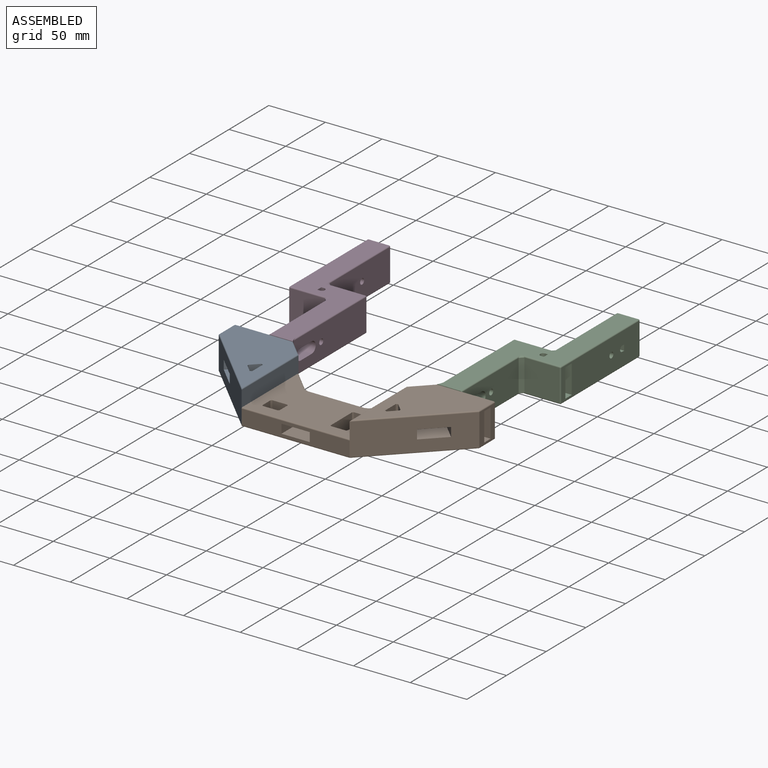
[diagram: assembled view]
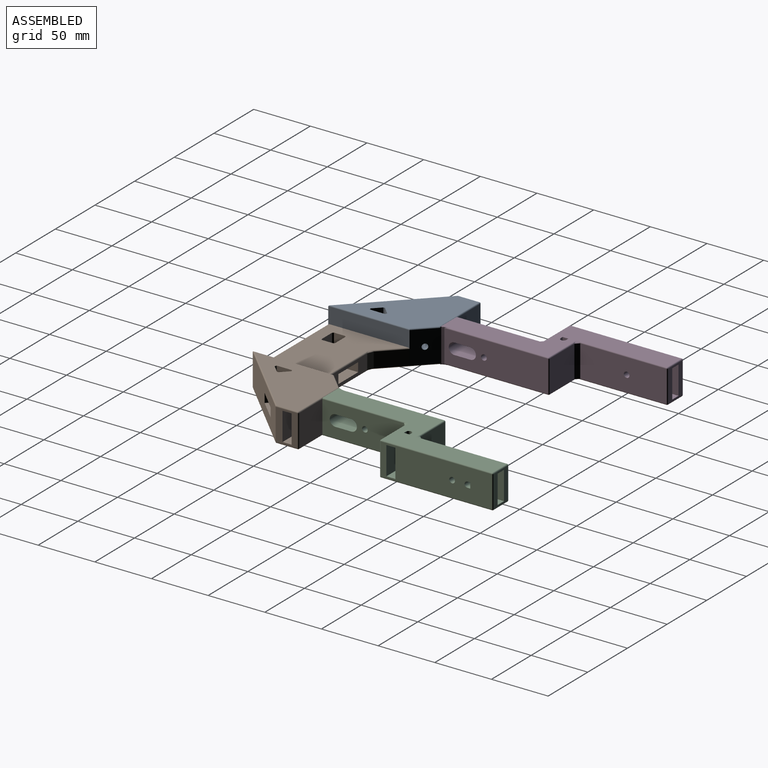
[diagram: assembled view, second angle]
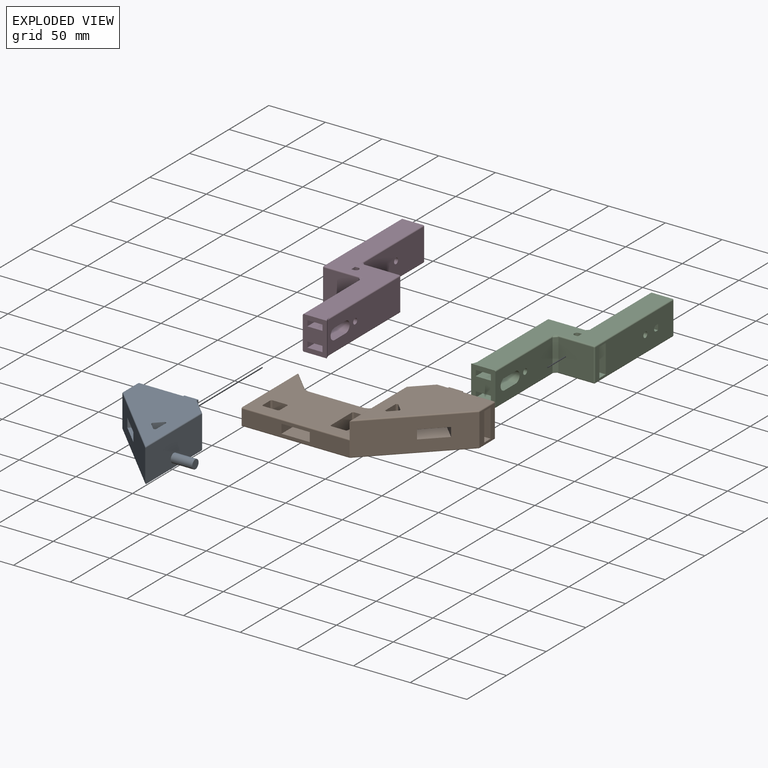
[diagram: exploded view]
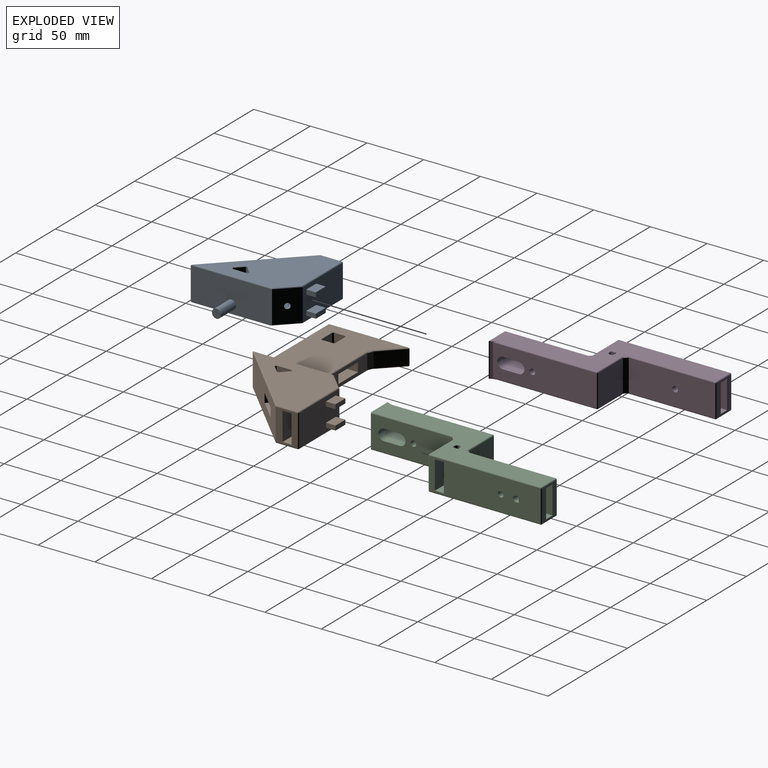
[diagram: exploded view, second angle]
ASSEMBLY  parts=4 mates=3
PART A: 49 faces, bbox 86.4x96.1x30 mm
  f0: plane 84.22x65.37mm, normal (0,0,1), area 3171.5mm2, adj f32,f33,f34,f36,f37,f43,f44,f45
  f1: plane 85.22x66.37mm, normal (0,0,-1), area 3240.3mm2, adj f3,f38,f39,f40,f42,f43,f44,f45
  f2: plane 50.41x28mm, normal (0,1,0), area 1312.1mm2, adj f18,f21,f22,f23,f24,f26,f27,f28
  f3: plane 71.68x29mm, normal (1,0,0), area 2027.7mm2, adj f1,f17,f18,f19,f34,f38,f40
  f4: plane 25x8mm, normal (-1,0,0), area 180.4mm2, adj f5,f7,f8,f9,f10
  f5: cylinder r=2.5mm len=37.18mm, axis (-1,0,0), area 548.7mm2, adj f4,f11
  f6: plane 17.68x17.68mm, normal (-0.71,-0.71,0), area 180.4mm2, adj f11,f12,f13,f14,f15
  f7: plane 20x8mm, normal (0,0,1), area 160mm2, adj f4,f8,f10,f16
  f8: plane 25x20mm, normal (0,1,0), area 500mm2, adj f4,f7,f9,f16
  f9: plane 20x8mm, normal (0,0,-1), area 160mm2, adj f4,f8,f10,f16
  f10: plane 25x20mm, normal (0,-1,0), area 500mm2, adj f4,f7,f9,f16
  f11: cylinder r=2.5mm len=25.23mm, axis (-0.71,-0.71,0), area 446.6mm2, adj f5,f6,f18
  f12: plane 14.14x14.14mm, normal (0.71,-0.71,0), area 160mm2, adj f6,f13,f15,f17
  f13: plane 31.82x31.82mm, normal (0,0,1), area 500mm2, adj f6,f12,f14,f17
  f14: plane 14.14x14.14mm, normal (-0.71,0.71,0), area 160mm2, adj f6,f13,f15,f17
  f15: plane 31.82x31.82mm, normal (0,0,-1), area 500mm2, adj f6,f12,f14,f17
  f16: plane 28x19.27mm, normal (-1,0,0), area 339.5mm2, adj f7,f8,f9,f10,f17,f31,f33,f39
  f17: plane 67.37x67.37mm, normal (-0.71,-0.71,0), area 2467.5mm2, adj f3,f12,f13,f14,f15,f16,f32,f38
  f18: plane 28x15.96mm, normal (0.71,0.71,0), area 612.3mm2, adj f2,f3,f11,f36,f40
  f19: cylinder r=4mm len=19mm, axis (-1,0,0), area 477.5mm2, adj f3,f20
  f20: plane 8x8mm, normal (1,0,0), area 50.3mm2, adj f19
  f21: plane 12.41x8.5mm, normal (0,0,1), area 105.5mm2, adj f2,f22,f24,f25
  f22: plane 8.5x4mm, normal (1,0,0), area 34mm2, adj f2,f21,f23,f25
  f23: plane 12.41x8.5mm, normal (0,0,-1), area 105.5mm2, adj f2,f22,f24,f25
  f24: plane 8.5x4mm, normal (-1,0,0), area 34mm2, adj f2,f21,f23,f25
  f25: plane 12.41x4mm, normal (0,1,0), area 49.6mm2, adj f21,f22,f23,f24
  f26: plane 12.41x8.5mm, normal (0,0,1), area 105.5mm2, adj f2,f27,f29,f30
  f27: plane 8.5x4mm, normal (1,0,0), area 34mm2, adj f2,f26,f28,f30
  f28: plane 12.41x8.5mm, normal (0,0,-1), area 105.5mm2, adj f2,f27,f29,f30
  f29: plane 8.5x4mm, normal (-1,0,0), area 34mm2, adj f2,f26,f28,f30
  f30: plane 12.41x4mm, normal (0,1,0), area 49.6mm2, adj f26,f27,f28,f29
  f31: cylinder r=1mm len=28mm, axis (0,0,-1), area 44mm2, adj f2,f16,f35,f41
  f32: cylinder r=1mm len=68.07mm, axis (0.71,-0.71,0), area 148mm2, adj f0,f17,f33,f34
  f33: cylinder r=1mm len=19.27mm, axis (0,-1,0), area 30mm2, adj f0,f16,f32,f35
  f34: cylinder r=1mm len=71.68mm, axis (0,-1,0), area 111mm2, adj f0,f3,f32,f36
  f35: sphere r=1mm, area 1.6mm2, adj f31,f33,f37
  f36: cylinder r=1mm len=16.67mm, axis (-0.71,0.71,0), area 35mm2, adj f0,f18,f34,f37
  f37: cylinder r=1mm len=50.41mm, axis (1,0,0), area 78.9mm2, adj f0,f2,f35,f36
  f38: cylinder r=1mm len=68.07mm, axis (-0.71,0.71,0), area 148.8mm2, adj f1,f3,f17,f39
  f39: cylinder r=1mm len=19.27mm, axis (0,1,0), area 30mm2, adj f1,f16,f38,f41
  f40: cylinder r=1mm len=17.37mm, axis (0.71,-0.71,0), area 35.8mm2, adj f1,f3,f18,f42
  f41: sphere r=1mm, area 1.6mm2, adj f31,f39,f42
  f42: cylinder r=1mm len=50.41mm, axis (1,0,0), area 78.9mm2, adj f1,f2,f40,f41
  f43: plane 30x13.48mm, normal (-1,0,0), area 404.3mm2, adj f0,f1,f46,f47
  f44: plane 30x6.74mm, normal (0.71,-0.71,0), area 285.9mm2, adj f0,f1,f47,f48
  f45: plane 30x6.74mm, normal (0.71,0.71,0), area 285.9mm2, adj f0,f1,f46,f48
  f46: plane 30x1.71mm, normal (-0.38,0.92,0), area 55.4mm2, adj f0,f1,f43,f45
  f47: plane 30x1.71mm, normal (-0.38,-0.92,0), area 55.4mm2, adj f0,f1,f43,f44
  f48: plane 30x1.41mm, normal (1,0,0), area 42.4mm2, adj f0,f1,f44,f45
PART B: 92 faces, bbox 163.8x96.6x30.4 mm
  f0: plane 161.63x85.63mm, normal (0,0,-1), area 7701mm2, adj f28,f42,f43,f44,f45,f46,f47,f48
  f1: plane 84.22x65.37mm, normal (0,0,1), area 3171.5mm2, adj f55,f56,f58,f61,f62,f78,f79,f80
  f2: plane 95.27x69.26mm, normal (0,0,1), area 4460.8mm2, adj f19,f28,f51,f52,f53,f54,f63,f70
  f3: plane 50.41x28mm, normal (0,1,0), area 1312.1mm2, adj f4,f31,f32,f33,f34,f36,f37,f38
  f4: plane 34.55x34.55mm, normal (-0.71,0.71,0), area 947.9mm2, adj f3,f16,f48,f54,f57,f61,f65
  f5: plane 25x8mm, normal (1,0,0), area 180.4mm2, adj f6,f8,f9,f10,f11
  f6: cylinder r=2.5mm len=37.18mm, axis (1,0,0), area 556.2mm2, adj f5,f16
  f7: plane 17.68x17.68mm, normal (0.71,-0.71,0), area 180.4mm2, adj f12,f13,f14,f15,f16
  f8: plane 20x8mm, normal (0,0,-1), area 160mm2, adj f5,f9,f11,f17
  f9: plane 25x20mm, normal (0,1,0), area 500mm2, adj f5,f8,f10,f17
  f10: plane 20x8mm, normal (0,0,1), area 160mm2, adj f5,f9,f11,f17
  f11: plane 25x20mm, normal (0,-1,0), area 500mm2, adj f5,f8,f10,f17
  f12: plane 14.14x14.14mm, normal (0.71,0.71,0), area 160mm2, adj f7,f13,f15,f18
  f13: plane 31.82x31.82mm, normal (0,0,1), area 500mm2, adj f7,f12,f14,f18
  f14: plane 14.14x14.14mm, normal (-0.71,-0.71,0), area 160mm2, adj f7,f13,f15,f18
  f15: plane 31.82x31.82mm, normal (0,0,-1), area 500mm2, adj f7,f12,f14,f18
  f16: cylinder r=2.5mm len=25.23mm, axis (0.71,-0.71,0), area 447.7mm2, adj f4,f6,f7
  f17: plane 28x19.27mm, normal (1,0,0), area 339.5mm2, adj f8,f9,f10,f11,f18,f41,f47,f58
  f18: plane 67.37x67.37mm, normal (0.71,-0.71,0), area 2467.5mm2, adj f12,f13,f14,f15,f17,f19,f24,f45
  f19: plane 71.32x15.06mm, normal (-1,0,0), area 998mm2, adj f2,f18,f54,f56,f57,f63
  f20: plane 50.96x8mm, normal (-1,0,0), area 407.7mm2, adj f21,f22,f23,f24
  f21: plane 50.96x25mm, normal (0,0,-1), area 1274.1mm2, adj f20,f23,f24,f26,f27
  f22: plane 50.96x25mm, normal (0,0,1), area 1274.1mm2, adj f20,f23,f24,f26,f27
  f23: plane 23.92x13mm, normal (0,1,0), area 211mm2, adj f20,f21,f22,f27,f46,f53,f65
  f24: plane 95.27x13mm, normal (0,-1,0), area 1038.5mm2, adj f18,f20,f21,f22,f26,f28,f43,f63
  f25: plane 18.59x18.59mm, normal (0.71,0.71,0), area 341.8mm2, adj f28,f42,f51,f68
  f26: plane 50.96x8mm, normal (1,0,0), area 407.7mm2, adj f21,f22,f24,f27
  f27: plane 23.92x13mm, normal (0,1,0), area 211mm2, adj f21,f22,f23,f26,f44,f52,f68
  f28: plane 72.1x15.42mm, normal (-1,0,0), area 1010.5mm2, adj f0,f2,f24,f25,f29,f42,f43,f51
  f29: cylinder r=4.5mm len=20mm, axis (-1,0,0), area 565.5mm2, adj f28,f30
  f30: plane 9x9mm, normal (-1,0,0), area 63.6mm2, adj f29
  f31: plane 12.41x8.5mm, normal (0,0,1), area 105.5mm2, adj f3,f32,f34,f35
  f32: plane 8.5x4mm, normal (1,0,0), area 34mm2, adj f3,f31,f33,f35
  f33: plane 12.41x8.5mm, normal (0,0,-1), area 105.5mm2, adj f3,f32,f34,f35
  f34: plane 8.5x4mm, normal (-1,0,0), area 34mm2, adj f3,f31,f33,f35
  f35: plane 12.41x4mm, normal (0,1,0), area 49.6mm2, adj f31,f32,f33,f34
  f36: plane 12.41x8.5mm, normal (0,0,1), area 105.5mm2, adj f3,f37,f39,f40
  f37: plane 8.5x4mm, normal (1,0,0), area 34mm2, adj f3,f36,f38,f40
  f38: plane 12.41x8.5mm, normal (0,0,-1), area 105.5mm2, adj f3,f37,f39,f40
  f39: plane 8.5x4mm, normal (-1,0,0), area 34mm2, adj f3,f36,f38,f40
  f40: plane 12.41x4mm, normal (0,1,0), area 49.6mm2, adj f36,f37,f38,f39
  f41: cylinder r=1mm len=28mm, axis (0,0,-1), area 44mm2, adj f3,f17,f49,f60
  f42: cylinder r=1mm len=21.71mm, axis (0.71,-0.71,0), area 43.2mm2, adj f0,f25,f28,f67
  f43: cylinder r=1mm len=95.27mm, axis (1,0,0), area 149.3mm2, adj f0,f24,f28,f45
  f44: cylinder r=1mm len=27.34mm, axis (1,0,0), area 39.5mm2, adj f0,f27,f46,f67
  f45: cylinder r=1mm len=68.07mm, axis (0.71,0.71,0), area 149mm2, adj f0,f18,f43,f47
  f46: cylinder r=1mm len=27.34mm, axis (-1,0,0), area 39.5mm2, adj f0,f23,f44,f64
  f47: cylinder r=1mm len=19.27mm, axis (0,1,0), area 29.9mm2, adj f0,f17,f45,f49
  f48: cylinder r=1mm len=37.67mm, axis (-0.71,-0.71,0), area 79.1mm2, adj f0,f4,f50,f64
  f49: sphere r=1mm, area 1mm2, adj f41,f47,f50
  f50: cylinder r=1mm len=50.41mm, axis (-1,0,0), area 78.9mm2, adj f0,f3,f48,f49
  f51: cylinder r=1mm len=21.71mm, axis (0.71,-0.71,0), area 43.2mm2, adj f2,f25,f28,f69
  f52: cylinder r=1mm len=27.34mm, axis (1,0,0), area 39.5mm2, adj f2,f27,f53,f69
  f53: cylinder r=1mm len=27.34mm, axis (-1,0,0), area 39.5mm2, adj f2,f23,f52,f66
  f54: cylinder r=1mm len=22.01mm, axis (-0.71,-0.71,0), area 42.8mm2, adj f2,f4,f19,f57,f66
  f55: cylinder r=1mm len=68.07mm, axis (-0.71,-0.71,0), area 147.4mm2, adj f1,f18,f56,f58
  f56: cylinder r=1mm len=71.26mm, axis (0,-1,0), area 110mm2, adj f1,f19,f55,f59
  f57: cylinder r=1mm len=15mm, axis (0,0,-1), area 11.5mm2, adj f4,f19,f54,f59
  f58: cylinder r=1mm len=19.27mm, axis (0,-1,0), area 29.9mm2, adj f1,f17,f55,f60
  f59: sphere r=1mm, area 0.8mm2, adj f56,f57,f61
  f60: sphere r=1mm, area 1mm2, adj f41,f58,f62
  f61: cylinder r=1mm len=16.37mm, axis (0.71,0.71,0), area 34.5mm2, adj f1,f4,f59,f62
  f62: cylinder r=1mm len=50.41mm, axis (-1,0,0), area 78.9mm2, adj f1,f3,f60,f61
  f63: cylinder r=1mm len=95.27mm, axis (1,0,0), area 149.6mm2, adj f2,f19,f24,f28
  f64: bspline ~5.13x3.12mm, area 8.2mm2, adj f46,f48,f65
  f65: plane 13x5.12mm, normal (-0.38,0.92,0), area 72.1mm2, adj f4,f23,f64,f66
  f66: bspline ~5.13x3.12mm, area 8.2mm2, adj f53,f54,f65
  f67: bspline ~5.13x3.12mm, area 8.2mm2, adj f42,f44,f68
  f68: plane 13x5.12mm, normal (0.38,0.92,0), area 72.1mm2, adj f25,f27,f67,f69
  f69: bspline ~5.13x3.12mm, area 8.2mm2, adj f51,f52,f68
  f70: plane 15x10mm, normal (-1,0,0), area 150mm2, adj f0,f2,f89,f90
  f71: plane 15x13.13mm, normal (0,-1,0), area 197mm2, adj f0,f2,f90,f91
  f72: plane 15x10mm, normal (1,0,0), area 150mm2, adj f0,f2,f88,f91
  f73: plane 15x13.13mm, normal (0,1,0), area 197mm2, adj f0,f2,f88,f89
  f74: plane 26.96x15mm, normal (-1,0,0), area 404.5mm2, adj f0,f2,f85,f86
  f75: plane 15x13.13mm, normal (0,-1,0), area 197mm2, adj f0,f2,f86,f87
  f76: plane 26.96x15mm, normal (1,0,0), area 404.5mm2, adj f0,f2,f84,f87
  f77: plane 15x13.13mm, normal (0,1,0), area 197mm2, adj f0,f2,f84,f85
  f78: plane 30x13.48mm, normal (1,0,0), area 404.3mm2, adj f0,f1,f82,f83
  f79: plane 30x6.74mm, normal (-0.71,0.71,0), area 285.9mm2, adj f0,f1,f81,f82
  f80: plane 30x6.74mm, normal (-0.71,-0.71,0), area 285.9mm2, adj f0,f1,f81,f83
  f81: plane 30x1.41mm, normal (-1,0,0), area 42.4mm2, adj f0,f1,f79,f80
  f82: plane 30x1.71mm, normal (0.38,0.92,0), area 55.4mm2, adj f0,f1,f78,f79
  f83: plane 30x1.71mm, normal (0.38,-0.92,0), area 55.4mm2, adj f0,f1,f78,f80
  f84: plane 15x1mm, normal (0.71,0.71,0), area 21.2mm2, adj f0,f2,f76,f77
  f85: plane 15x1mm, normal (-0.71,0.71,0), area 21.2mm2, adj f0,f2,f74,f77
  f86: plane 15x1mm, normal (-0.71,-0.71,0), area 21.2mm2, adj f0,f2,f74,f75
  f87: plane 15x1mm, normal (0.71,-0.71,0), area 21.2mm2, adj f0,f2,f75,f76
  f88: plane 15x1mm, normal (0.71,0.71,0), area 21.2mm2, adj f0,f2,f72,f73
  f89: plane 15x1mm, normal (-0.71,0.71,0), area 21.2mm2, adj f0,f2,f70,f73
  f90: plane 15x1mm, normal (-0.71,-0.71,0), area 21.2mm2, adj f0,f2,f70,f71
  f91: plane 15x1mm, normal (0.71,-0.71,0), area 21.2mm2, adj f0,f2,f71,f72
PART C: 85 faces, bbox 56.4x175x36.1 mm
  f0: plane 10x8mm, normal (0,1,0), area 80mm2, adj f43,f44,f46,f50
  f1: plane 28x18mm, normal (0,1,0), area 304mm2, adj f30,f31,f43,f44,f45,f46,f58,f71
  f2: plane 25x1.5mm, normal (1,0,0), area 37.5mm2, adj f33,f34,f35,f40
  f3: plane 98x28mm, normal (1,0,0), area 2502mm2, adj f31,f32,f33,f34,f35,f36,f42,f48
  f4: plane 30x21.41mm, normal (0,-1,0), area 507.7mm2, adj f5,f6,f7,f9,f15,f16,f17,f18
  f5: plane 174.01x55.42mm, normal (0,0,-1), area 3767.5mm2, adj f4,f7,f64,f65,f67,f68,f70,f71
  f6: plane 174.01x55.42mm, normal (0,0,1), area 3745.2mm2, adj f4,f7,f38,f39,f40,f41,f52,f53
  f7: plane 30.01x0.66mm, normal (-0.71,0.71,0), area 22.5mm2, adj f4,f5,f6,f76,f77,f78
  f8: plane 69.01x28mm, normal (-1,0,0), area 1694mm2, adj f10,f11,f12,f13,f14,f25,f52,f68
  f9: plane 72x28mm, normal (1,0,0), area 1777.8mm2, adj f4,f10,f11,f12,f13,f14,f62,f64
  f10: cylinder r=5mm len=20mm, axis (1,0,0), area 314.2mm2, adj f8,f9,f11,f13
  f11: plane 20x14mm, normal (0,0,-1), area 280mm2, adj f8,f9,f10,f12
  f12: cylinder r=5mm len=20mm, axis (1,0,0), area 314.2mm2, adj f8,f9,f11,f13
  f13: plane 20x14mm, normal (0,0,1), area 280mm2, adj f8,f9,f10,f12
  f14: cylinder r=2.5mm len=20mm, axis (1,0,0), area 314.2mm2, adj f8,f9
  f15: plane 13.41x9mm, normal (0,0,-1), area 120.7mm2, adj f4,f16,f18,f19
  f16: plane 9x5mm, normal (-1,0,0), area 45mm2, adj f4,f15,f17,f19
  f17: plane 13.41x9mm, normal (0,0,1), area 120.7mm2, adj f4,f16,f18,f19
  f18: plane 9x5mm, normal (1,0,0), area 45mm2, adj f4,f15,f17,f19
  f19: plane 13.41x5mm, normal (0,-1,0), area 67mm2, adj f15,f16,f17,f18
  f20: plane 13.41x9mm, normal (0,0,-1), area 120.6mm2, adj f4,f21,f23,f24
  f21: plane 9x5mm, normal (-1,0,0), area 45mm2, adj f4,f20,f22,f24
  f22: plane 13.41x9mm, normal (0,0,1), area 120.6mm2, adj f4,f21,f23,f24
  f23: plane 9x5mm, normal (1,0,0), area 45mm2, adj f4,f20,f22,f24
  f24: plane 13.41x5mm, normal (0,-1,0), area 67mm2, adj f20,f21,f22,f23
  f25: plane 28x22.35mm, normal (-1,0,0), area 625.7mm2, adj f8,f29,f53,f70
  f26: plane 31x28mm, normal (0,1,0), area 868mm2, adj f29,f55,f74,f83
  f27: plane 76x28mm, normal (-1,0,0), area 2108.4mm2, adj f30,f42,f56,f75,f83
  f28: plane 31x28mm, normal (0,-1,0), area 868mm2, adj f32,f63,f65,f80
  f29: cylinder r=1mm len=28mm, axis (0,0,1), area 44mm2, adj f25,f26,f54,f72
  f30: cylinder r=1mm len=28mm, axis (0,0,-1), area 44mm2, adj f1,f27,f57,f73
  f31: cylinder r=1mm len=28mm, axis (0,0,1), area 44mm2, adj f1,f3,f59,f69
  f32: cylinder r=1mm len=28mm, axis (0,0,-1), area 44mm2, adj f3,f28,f61,f66
  f33: plane 20x8mm, normal (0,0,-1), area 160mm2, adj f2,f3,f34,f36,f37,f38
  f34: plane 25x20mm, normal (0,-1,0), area 500mm2, adj f2,f3,f33,f35
  f35: plane 25x8mm, normal (0,0,1), area 182.3mm2, adj f2,f3,f34,f36,f37,f39,f40,f41
  f36: plane 25x20mm, normal (0,1,0), area 500mm2, adj f3,f33,f35,f37
  f37: plane 25x1.5mm, normal (1,0,0), area 37.5mm2, adj f33,f35,f36,f41
  f38: plane 5x2.5mm, normal (-1,0,0), area 12.5mm2, adj f6,f33,f40,f41
  f39: cylinder r=2.5mm len=27.5mm, axis (0,0,1), area 216mm2, adj f6,f35,f40,f41
  f40: plane 27.5x2.5mm, normal (0,-1,0), area 68.8mm2, adj f2,f6,f35,f38,f39
  f41: plane 27.5x2.5mm, normal (0,1,0), area 68.8mm2, adj f6,f35,f37,f38,f39
  f42: cylinder r=2.5mm len=20mm, axis (1,0,0), area 314.2mm2, adj f3,f27
  f43: plane 20x8mm, normal (0,0,-1), area 160mm2, adj f0,f1,f44,f46
  f44: plane 25x25mm, normal (1,0,0), area 522.3mm2, adj f0,f1,f43,f45,f47,f49,f50,f51
  f45: plane 20x8mm, normal (0,0,1), area 160mm2, adj f1,f44,f46,f47
  f46: plane 25x20mm, normal (-1,0,0), area 500mm2, adj f0,f1,f43,f45,f47,f48
  f47: plane 10x8mm, normal (0,1,0), area 80mm2, adj f44,f45,f46,f51
  f48: plane 6x5mm, normal (0,-1,0), area 30mm2, adj f3,f46,f50,f51
  f49: cylinder r=2.5mm len=14mm, axis (1,0,0), area 110mm2, adj f3,f44,f50,f51
  f50: plane 14x2.5mm, normal (0,0,-1), area 35mm2, adj f0,f3,f44,f48,f49
  f51: plane 14x2.5mm, normal (0,0,1), area 35mm2, adj f3,f44,f47,f48,f49
  f52: cylinder r=1mm len=69.01mm, axis (0,-1,0), area 106.1mm2, adj f6,f8,f53,f78
  f53: cylinder r=1mm len=22.35mm, axis (0,1,0), area 35.1mm2, adj f6,f25,f52,f54
  f54: sphere r=1mm, area 1.6mm2, adj f29,f53,f55
  f55: cylinder r=1mm len=35mm, axis (1,0,0), area 51mm2, adj f6,f26,f54,f82
  f56: cylinder r=1mm len=80mm, axis (0,1,0), area 121.7mm2, adj f6,f27,f57,f82
  f57: sphere r=1mm, area 1.6mm2, adj f30,f56,f58
  f58: cylinder r=1mm len=18mm, axis (1,0,0), area 28.3mm2, adj f1,f6,f57,f59
  f59: sphere r=1mm, area 1.6mm2, adj f31,f58,f60
  f60: cylinder r=1mm len=98mm, axis (0,-1,0), area 153.9mm2, adj f3,f6,f59,f61
  f61: sphere r=1mm, area 2.1mm2, adj f32,f60,f63
  f62: cylinder r=1mm len=76mm, axis (0,-1,0), area 115.4mm2, adj f4,f6,f9,f79
  f63: cylinder r=1mm len=35mm, axis (-1,0,0), area 51mm2, adj f6,f28,f61,f79
  f64: cylinder r=1mm len=76mm, axis (0,-1,0), area 115.4mm2, adj f4,f5,f9,f81
  f65: cylinder r=1mm len=35mm, axis (-1,0,0), area 51mm2, adj f5,f28,f66,f81
  f66: sphere r=1mm, area 2.1mm2, adj f32,f65,f67
  f67: cylinder r=1mm len=98mm, axis (0,-1,0), area 153.9mm2, adj f3,f5,f66,f69
  f68: cylinder r=1mm len=69.01mm, axis (0,1,0), area 106.1mm2, adj f5,f8,f70,f76
  f69: sphere r=1mm, area 1.6mm2, adj f31,f67,f71
  f70: cylinder r=1mm len=22.35mm, axis (0,-1,0), area 35.1mm2, adj f5,f25,f68,f72
  f71: cylinder r=1mm len=18mm, axis (1,0,0), area 28.3mm2, adj f1,f5,f69,f73
  f72: sphere r=1mm, area 1.6mm2, adj f29,f70,f74
  f73: sphere r=1mm, area 1.6mm2, adj f30,f71,f75
  f74: cylinder r=1mm len=35mm, axis (1,0,0), area 51mm2, adj f5,f26,f72,f84
  f75: cylinder r=1mm len=80mm, axis (0,1,0), area 121.7mm2, adj f5,f27,f73,f84
  f76: bspline ~6.12x4mm, area 3.2mm2, adj f5,f7,f68,f77
  f77: plane 28x2.12mm, normal (-0.92,0.38,0), area 64.3mm2, adj f7,f8,f76,f78
  f78: bspline ~6.46x4.32mm, area 3.2mm2, adj f6,f7,f52,f77
  f79: bspline ~4x4mm, area 4.8mm2, adj f62,f63,f80
  f80: plane 28x3mm, normal (0.71,-0.71,0), area 118.8mm2, adj f9,f28,f79,f81
  f81: bspline ~4x4mm, area 4.8mm2, adj f64,f65,f80
  f82: bspline ~4x4mm, area 4.8mm2, adj f55,f56,f83
  f83: plane 28x3mm, normal (-0.71,0.71,0), area 118.8mm2, adj f26,f27,f82,f84
  f84: bspline ~4x4mm, area 4.8mm2, adj f74,f75,f83
PART D: 85 faces, bbox 56.4x175x36.1 mm
  f0: plane 10x8mm, normal (0,1,0), area 80mm2, adj f43,f44,f46,f50
  f1: plane 28x18mm, normal (0,1,0), area 304mm2, adj f30,f31,f43,f44,f45,f46,f58,f71
  f2: plane 25x1.5mm, normal (-1,0,0), area 37.5mm2, adj f33,f34,f35,f40
  f3: plane 98x28mm, normal (-1,0,0), area 2502mm2, adj f31,f32,f33,f34,f35,f36,f42,f48
  f4: plane 30x21.41mm, normal (0,-1,0), area 507.7mm2, adj f5,f6,f7,f9,f15,f16,f17,f18
  f5: plane 174.01x55.42mm, normal (0,0,-1), area 3767.5mm2, adj f4,f7,f64,f65,f67,f68,f70,f71
  f6: plane 174.01x55.42mm, normal (0,0,1), area 3745.2mm2, adj f4,f7,f38,f39,f40,f41,f52,f53
  f7: plane 30.01x0.66mm, normal (0.71,0.71,0), area 22.5mm2, adj f4,f5,f6,f76,f77,f78
  f8: plane 69.01x28mm, normal (1,0,0), area 1694mm2, adj f10,f11,f12,f13,f14,f25,f52,f68
  f9: plane 72x28mm, normal (-1,0,0), area 1777.8mm2, adj f4,f10,f11,f12,f13,f14,f62,f64
  f10: cylinder r=5mm len=20mm, axis (-1,0,0), area 314.2mm2, adj f8,f9,f11,f13
  f11: plane 20x14mm, normal (0,0,-1), area 280mm2, adj f8,f9,f10,f12
  f12: cylinder r=5mm len=20mm, axis (-1,0,0), area 314.2mm2, adj f8,f9,f11,f13
  f13: plane 20x14mm, normal (0,0,1), area 280mm2, adj f8,f9,f10,f12
  f14: cylinder r=2.5mm len=20mm, axis (-1,0,0), area 314.2mm2, adj f8,f9
  f15: plane 13.41x9mm, normal (0,0,-1), area 120.7mm2, adj f4,f16,f18,f19
  f16: plane 9x5mm, normal (1,0,0), area 45mm2, adj f4,f15,f17,f19
  f17: plane 13.41x9mm, normal (0,0,1), area 120.7mm2, adj f4,f16,f18,f19
  f18: plane 9x5mm, normal (-1,0,0), area 45mm2, adj f4,f15,f17,f19
  f19: plane 13.41x5mm, normal (0,-1,0), area 67mm2, adj f15,f16,f17,f18
  f20: plane 13.41x9mm, normal (0,0,-1), area 120.6mm2, adj f4,f21,f23,f24
  f21: plane 9x5mm, normal (1,0,0), area 45mm2, adj f4,f20,f22,f24
  f22: plane 13.41x9mm, normal (0,0,1), area 120.6mm2, adj f4,f21,f23,f24
  f23: plane 9x5mm, normal (-1,0,0), area 45mm2, adj f4,f20,f22,f24
  f24: plane 13.41x5mm, normal (0,-1,0), area 67mm2, adj f20,f21,f22,f23
  f25: plane 28x22.35mm, normal (1,0,0), area 625.7mm2, adj f8,f29,f53,f70
  f26: plane 31x28mm, normal (0,1,0), area 868mm2, adj f29,f55,f74,f83
  f27: plane 76x28mm, normal (1,0,0), area 2108.4mm2, adj f30,f42,f56,f75,f83
  f28: plane 31x28mm, normal (0,-1,0), area 868mm2, adj f32,f63,f65,f80
  f29: cylinder r=1mm len=28mm, axis (0,0,1), area 44mm2, adj f25,f26,f54,f72
  f30: cylinder r=1mm len=28mm, axis (0,0,-1), area 44mm2, adj f1,f27,f57,f73
  f31: cylinder r=1mm len=28mm, axis (0,0,1), area 44mm2, adj f1,f3,f59,f69
  f32: cylinder r=1mm len=28mm, axis (0,0,-1), area 44mm2, adj f3,f28,f61,f66
  f33: plane 20x8mm, normal (0,0,-1), area 160mm2, adj f2,f3,f34,f36,f37,f38
  f34: plane 25x20mm, normal (0,-1,0), area 500mm2, adj f2,f3,f33,f35
  f35: plane 25x8mm, normal (0,0,1), area 182.3mm2, adj f2,f3,f34,f36,f37,f39,f40,f41
  f36: plane 25x20mm, normal (0,1,0), area 500mm2, adj f3,f33,f35,f37
  f37: plane 25x1.5mm, normal (-1,0,0), area 37.5mm2, adj f33,f35,f36,f41
  f38: plane 5x2.5mm, normal (1,0,0), area 12.5mm2, adj f6,f33,f40,f41
  f39: cylinder r=2.5mm len=27.5mm, axis (0,0,1), area 216mm2, adj f6,f35,f40,f41
  f40: plane 27.5x2.5mm, normal (0,-1,0), area 68.8mm2, adj f2,f6,f35,f38,f39
  f41: plane 27.5x2.5mm, normal (0,1,0), area 68.8mm2, adj f6,f35,f37,f38,f39
  f42: cylinder r=2.5mm len=20mm, axis (-1,0,0), area 314.2mm2, adj f3,f27
  f43: plane 20x8mm, normal (0,0,-1), area 160mm2, adj f0,f1,f44,f46
  f44: plane 25x25mm, normal (-1,0,0), area 522.3mm2, adj f0,f1,f43,f45,f47,f49,f50,f51
  f45: plane 20x8mm, normal (0,0,1), area 160mm2, adj f1,f44,f46,f47
  f46: plane 25x20mm, normal (1,0,0), area 500mm2, adj f0,f1,f43,f45,f47,f48
  f47: plane 10x8mm, normal (0,1,0), area 80mm2, adj f44,f45,f46,f51
  f48: plane 6x5mm, normal (0,-1,0), area 30mm2, adj f3,f46,f50,f51
  f49: cylinder r=2.5mm len=14mm, axis (-1,0,0), area 110mm2, adj f3,f44,f50,f51
  f50: plane 14x2.5mm, normal (0,0,-1), area 35mm2, adj f0,f3,f44,f48,f49
  f51: plane 14x2.5mm, normal (0,0,1), area 35mm2, adj f3,f44,f47,f48,f49
  f52: cylinder r=1mm len=69.01mm, axis (0,-1,0), area 106.1mm2, adj f6,f8,f53,f78
  f53: cylinder r=1mm len=22.35mm, axis (0,1,0), area 35.1mm2, adj f6,f25,f52,f54
  f54: sphere r=1mm, area 1mm2, adj f29,f53,f55
  f55: cylinder r=1mm len=35mm, axis (-1,0,0), area 51mm2, adj f6,f26,f54,f82
  f56: cylinder r=1mm len=80mm, axis (0,1,0), area 121.7mm2, adj f6,f27,f57,f82
  f57: sphere r=1mm, area 1mm2, adj f30,f56,f58
  f58: cylinder r=1mm len=18mm, axis (-1,0,0), area 28.3mm2, adj f1,f6,f57,f59
  f59: sphere r=1mm, area 2.1mm2, adj f31,f58,f60
  f60: cylinder r=1mm len=98mm, axis (0,-1,0), area 153.9mm2, adj f3,f6,f59,f61
  f61: sphere r=1mm, area 1.6mm2, adj f32,f60,f63
  f62: cylinder r=1mm len=76mm, axis (0,-1,0), area 115.4mm2, adj f4,f6,f9,f79
  f63: cylinder r=1mm len=35mm, axis (1,0,0), area 51mm2, adj f6,f28,f61,f79
  f64: cylinder r=1mm len=76mm, axis (0,-1,0), area 115.4mm2, adj f4,f5,f9,f81
  f65: cylinder r=1mm len=35mm, axis (1,0,0), area 51mm2, adj f5,f28,f66,f81
  f66: sphere r=1mm, area 1.6mm2, adj f32,f65,f67
  f67: cylinder r=1mm len=98mm, axis (0,-1,0), area 153.9mm2, adj f3,f5,f66,f69
  f68: cylinder r=1mm len=69.01mm, axis (0,1,0), area 106.1mm2, adj f5,f8,f70,f76
  f69: sphere r=1mm, area 2.1mm2, adj f31,f67,f71
  f70: cylinder r=1mm len=22.35mm, axis (0,-1,0), area 35.1mm2, adj f5,f25,f68,f72
  f71: cylinder r=1mm len=18mm, axis (-1,0,0), area 28.3mm2, adj f1,f5,f69,f73
  f72: sphere r=1mm, area 1mm2, adj f29,f70,f74
  f73: sphere r=1mm, area 1mm2, adj f30,f71,f75
  f74: cylinder r=1mm len=35mm, axis (-1,0,0), area 51mm2, adj f5,f26,f72,f84
  f75: cylinder r=1mm len=80mm, axis (0,1,0), area 121.7mm2, adj f5,f27,f73,f84
  f76: bspline ~6.46x4.32mm, area 3.2mm2, adj f5,f7,f68,f77
  f77: plane 28x2.12mm, normal (0.92,0.38,0), area 64.3mm2, adj f7,f8,f76,f78
  f78: bspline ~6.12x4mm, area 3.2mm2, adj f6,f7,f52,f77
  f79: bspline ~4x4mm, area 4.8mm2, adj f62,f63,f80
  f80: plane 28x3mm, normal (-0.71,-0.71,0), area 118.8mm2, adj f9,f28,f79,f81
  f81: bspline ~4x4mm, area 4.8mm2, adj f64,f65,f80
  f82: bspline ~4x4mm, area 4.8mm2, adj f55,f56,f83
  f83: plane 28x3mm, normal (0.71,0.71,0), area 118.8mm2, adj f26,f27,f82,f84
  f84: bspline ~4x4mm, area 4.8mm2, adj f74,f75,f83
PLACE A t=(3.04,194.74,-16.04)mm
PLACE B t=(-196.96,194.74,-16.04)mm
PLACE C t=(-196.96,-5.26,-16.04)mm
PLACE D t=(3.04,-5.26,-16.04)mm
MATE fastened A.f2 <-> D.f4  axis (0,1,0) through (-171.26,67.37,7.46)mm
MATE fastened A.f19 <-> B.f29  axis (-1,0,0) through (-144.6,15.74,-8.54)mm
MATE fastened B.f3 <-> C.f4  axis (0,1,0) through (-22.67,67.37,7.46)mm
